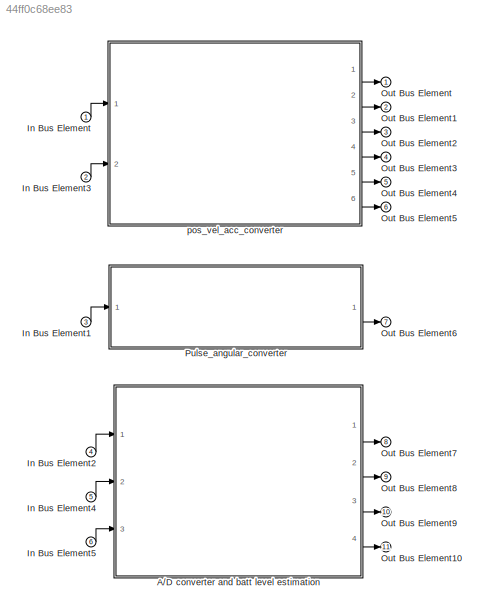
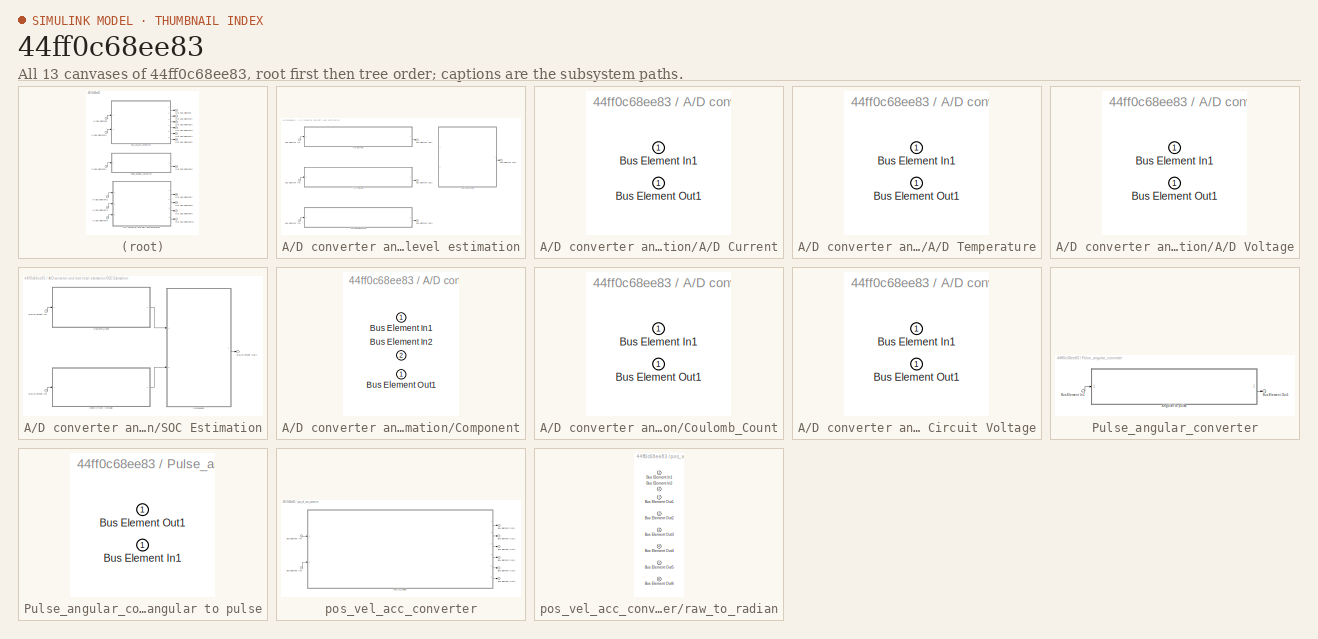
[diagram: thumbnail index - all 13 canvases of the model, root first then tree order]
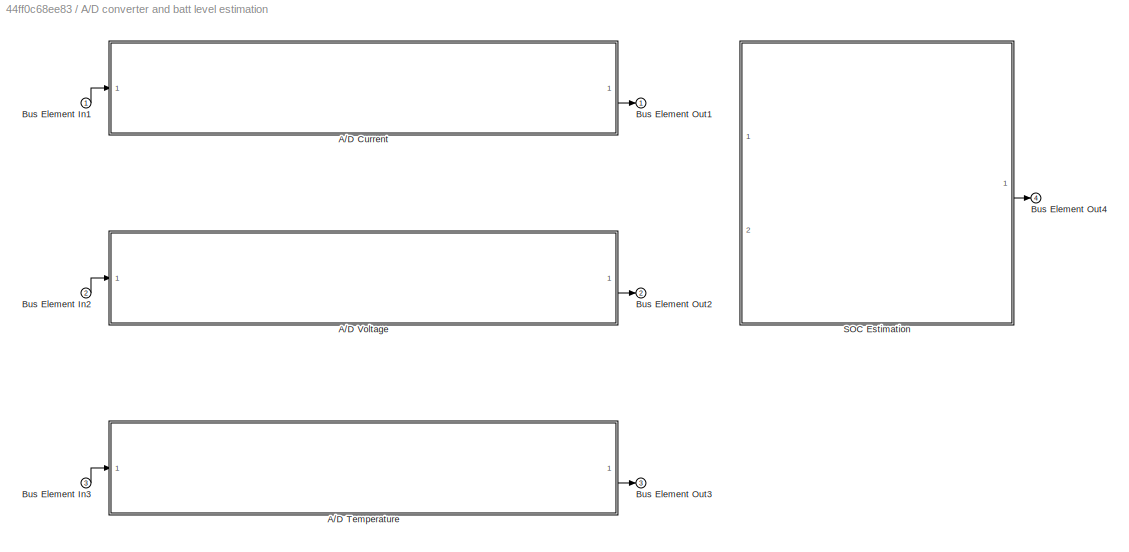
MODEL slx_44ff0c68ee83
KIND model
CONFIG AbsTol = auto
CONFIG EnableMultiTasking = off
CONFIG FixedStep = auto
CONFIG MaxStep = auto
CONFIG MinStep = auto
CONFIG RelTol = 1e-3
CONFIG SampleTimeConstraint = Unconstrained
CONFIG SolverName = VariableStepAuto
CONFIG StartTime = 0.0
CONFIG StopTime = 10.0
BLOCK [SubSystem] A//D converter and batt level estimation
  PortSchema = {"entries":[{"content":{"headerSize":26,"margin":15,"minimumSpacing":25,"sides":[{"content":{"connectorIds":["In1","In2","In3"]},"type":"ConnectorPlacement.EquallySpacedRectSide","uuid":"981ec522-52a0-4dbf-ac20-b0bdc6aa1afd"},{"content":{"connectorIds":["Out1","Out2","Out3","Out4"],"side":"RIGHT"},"type":"ConnectorPlacement.EquallySpacedRectSide","uuid":"9bffbeba-24b3-4025-8564-8c4b0e924e04"},{"co...<+321ch>
  Ports = [3, 4]
  RequestExecContextInheritance = off
BLOCK [SubSystem] A//D converter and batt level estimation/A//D Current
  PortSchema = {"entries":[{"content":{"headerSize":26,"margin":15,"minimumSpacing":25,"sides":[{"content":{"connectorIds":["In1"]},"type":"ConnectorPlacement.EquallySpacedRectSide","uuid":"981ec522-52a0-4dbf-ac20-b0bdc6aa1afd"},{"content":{"connectorIds":["Out1"],"side":"RIGHT"},"type":"ConnectorPlacement.EquallySpacedRectSide","uuid":"9bffbeba-24b3-4025-8564-8c4b0e924e04"},{"content":{"connectorIds":[],"side":...<+288ch>  <repeated x7 — deduplicated; at blocks: A/D Current, A/D Temperature, A/D Voltage, Coulomb_Count, Open Circuit Voltage, Pulse_angular_converter, angular to pulse>
  Ports = [1, 1]
  RequestExecContextInheritance = off
BLOCK [Inport] A//D converter and batt level estimation/A//D Current/Bus Element In1
BLOCK [Outport] A//D converter and batt level estimation/A//D Current/Bus Element Out1
BLOCK [SubSystem] A//D converter and batt level estimation/A//D Temperature
  Ports = [1, 1]
  RequestExecContextInheritance = off
BLOCK [Inport] A//D converter and batt level estimation/A//D Temperature/Bus Element In1
BLOCK [Outport] A//D converter and batt level estimation/A//D Temperature/Bus Element Out1
BLOCK [SubSystem] A//D converter and batt level estimation/A//D Voltage
  Ports = [1, 1]
  RequestExecContextInheritance = off
BLOCK [Inport] A//D converter and batt level estimation/A//D Voltage/Bus Element In1
BLOCK [Outport] A//D converter and batt level estimation/A//D Voltage/Bus Element Out1
BLOCK [Inport] A//D converter and batt level estimation/Bus Element In1
BLOCK [Inport] A//D converter and batt level estimation/Bus Element In2
  Port = 2
BLOCK [Inport] A//D converter and batt level estimation/Bus Element In3
  Port = 3
BLOCK [Outport] A//D converter and batt level estimation/Bus Element Out1
BLOCK [Outport] A//D converter and batt level estimation/Bus Element Out2
  Port = 2
BLOCK [Outport] A//D converter and batt level estimation/Bus Element Out3
  Port = 3
BLOCK [Outport] A//D converter and batt level estimation/Bus Element Out4
  Port = 4
BLOCK [SubSystem] A//D converter and batt level estimation/SOC Estimation
  PortSchema = {"entries":[{"content":{"headerSize":26,"margin":15,"minimumSpacing":25,"sides":[{"content":{"connectorIds":["In1","In2"]},"type":"ConnectorPlacement.EquallySpacedRectSide","uuid":"981ec522-52a0-4dbf-ac20-b0bdc6aa1afd"},{"content":{"connectorIds":["Out1"],"side":"RIGHT"},"type":"ConnectorPlacement.EquallySpacedRectSide","uuid":"9bffbeba-24b3-4025-8564-8c4b0e924e04"},{"content":{"connectorIds":[],"...<+294ch>
  Ports = [2, 1]
  RequestExecContextInheritance = off
BLOCK [Inport] A//D converter and batt level estimation/SOC Estimation/Bus Element In1
BLOCK [Inport] A//D converter and batt level estimation/SOC Estimation/Bus Element In2
  Port = 2
BLOCK [Outport] A//D converter and batt level estimation/SOC Estimation/Bus Element Out1
BLOCK [SubSystem] A//D converter and batt level estimation/SOC Estimation/Component
  PortSchema = {"entries":[{"content":{"headerSize":26,"margin":15,"minimumSpacing":25,"sides":[{"content":{"connectorIds":["In1","In2"]},"type":"ConnectorPlacement.EquallySpacedRectSide","uuid":"981ec522-52a0-4dbf-ac20-b0bdc6aa1afd"},{"content":{"connectorIds":["Out1"],"side":"RIGHT"},"type":"ConnectorPlacement.EquallySpacedRectSide","uuid":"9bffbeba-24b3-4025-8564-8c4b0e924e04"},{"content":{"connectorIds":[],"...<+294ch>
  Ports = [2, 1]
  RequestExecContextInheritance = off
BLOCK [Inport] A//D converter and batt level estimation/SOC Estimation/Component/Bus Element In1
BLOCK [Inport] A//D converter and batt level estimation/SOC Estimation/Component/Bus Element In2
  Port = 2
BLOCK [Outport] A//D converter and batt level estimation/SOC Estimation/Component/Bus Element Out1
BLOCK [SubSystem] A//D converter and batt level estimation/SOC Estimation/Coulomb_Count
  Ports = [1, 1]
  RequestExecContextInheritance = off
BLOCK [Inport] A//D converter and batt level estimation/SOC Estimation/Coulomb_Count/Bus Element In1
BLOCK [Outport] A//D converter and batt level estimation/SOC Estimation/Coulomb_Count/Bus Element Out1
BLOCK [SubSystem] A//D converter and batt level estimation/SOC Estimation/Open Circuit Voltage
  Ports = [1, 1]
  RequestExecContextInheritance = off
BLOCK [Inport] A//D converter and batt level estimation/SOC Estimation/Open Circuit Voltage/Bus Element In1
BLOCK [Outport] A//D converter and batt level estimation/SOC Estimation/Open Circuit Voltage/Bus Element Out1
BLOCK [Inport] In Bus Element
BLOCK [Inport] In Bus Element1
  Port = 3
BLOCK [Inport] In Bus Element2
  Port = 4
BLOCK [Inport] In Bus Element3
  Port = 2
BLOCK [Inport] In Bus Element4
  Port = 5
BLOCK [Inport] In Bus Element5
  Port = 6
BLOCK [Outport] Out Bus Element
BLOCK [Outport] Out Bus Element1
  Port = 2
BLOCK [Outport] Out Bus Element10
  Port = 11
BLOCK [Outport] Out Bus Element2
  Port = 3
BLOCK [Outport] Out Bus Element3
  Port = 4
BLOCK [Outport] Out Bus Element4
  Port = 5
BLOCK [Outport] Out Bus Element5
  Port = 6
BLOCK [Outport] Out Bus Element6
  Port = 7
BLOCK [Outport] Out Bus Element7
  Port = 8
BLOCK [Outport] Out Bus Element8
  Port = 9
BLOCK [Outport] Out Bus Element9
  Port = 10
BLOCK [SubSystem] Pulse_angular_converter
  Ports = [1, 1]
  RequestExecContextInheritance = off
BLOCK [Inport] Pulse_angular_converter/Bus Element In1
BLOCK [Outport] Pulse_angular_converter/Bus Element Out1
BLOCK [SubSystem] Pulse_angular_converter/angular to pulse
  Ports = [1, 1]
  RequestExecContextInheritance = off
BLOCK [Inport] Pulse_angular_converter/angular to pulse/Bus Element In1
BLOCK [Outport] Pulse_angular_converter/angular to pulse/Bus Element Out1
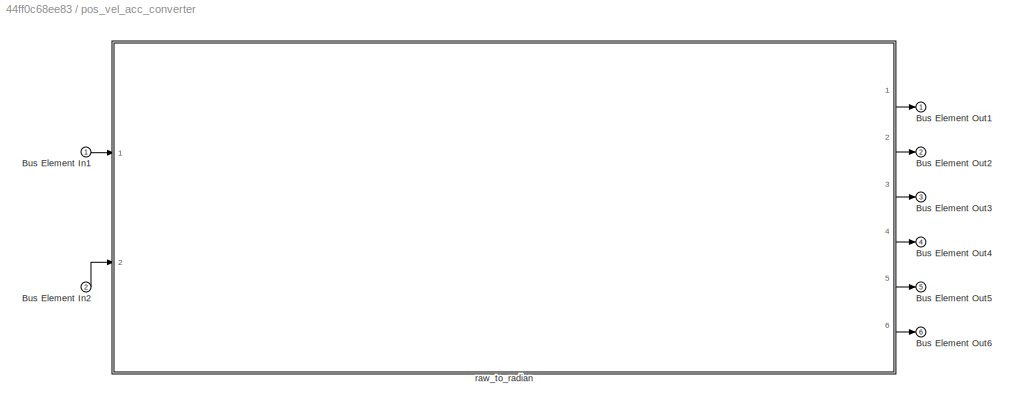
BLOCK [SubSystem] pos_vel_acc_converter
  PortSchema = {"entries":[{"content":{"headerSize":26,"margin":15,"minimumSpacing":25,"sides":[{"content":{"connectorIds":["In1","In2"]},"type":"ConnectorPlacement.EquallySpacedRectSide","uuid":"981ec522-52a0-4dbf-ac20-b0bdc6aa1afd"},{"content":{"connectorIds":["Out1","Out2","Out3","Out4","Out5","Out6"],"side":"RIGHT"},"type":"ConnectorPlacement.EquallySpacedRectSide","uuid":"9bffbeba-24b3-4025-8564-8c4b0e924e0...<+329ch>
  Ports = [2, 6]
  RequestExecContextInheritance = off
BLOCK [Inport] pos_vel_acc_converter/Bus Element In1
BLOCK [Inport] pos_vel_acc_converter/Bus Element In2
  Port = 2
BLOCK [Outport] pos_vel_acc_converter/Bus Element Out1
BLOCK [Outport] pos_vel_acc_converter/Bus Element Out2
  Port = 2
BLOCK [Outport] pos_vel_acc_converter/Bus Element Out3
  Port = 3
BLOCK [Outport] pos_vel_acc_converter/Bus Element Out4
  Port = 4
BLOCK [Outport] pos_vel_acc_converter/Bus Element Out5
  Port = 5
BLOCK [Outport] pos_vel_acc_converter/Bus Element Out6
  Port = 6
BLOCK [SubSystem] pos_vel_acc_converter/raw_to_radian
  PortSchema = {"entries":[{"content":{"headerSize":26,"margin":15,"minimumSpacing":25,"sides":[{"content":{"connectorIds":["In1","In2"]},"type":"ConnectorPlacement.EquallySpacedRectSide","uuid":"981ec522-52a0-4dbf-ac20-b0bdc6aa1afd"},{"content":{"connectorIds":["Out1","Out2","Out3","Out4","Out5","Out6"],"side":"RIGHT"},"type":"ConnectorPlacement.EquallySpacedRectSide","uuid":"9bffbeba-24b3-4025-8564-8c4b0e924e0...<+329ch>
  Ports = [2, 6]
  RequestExecContextInheritance = off
BLOCK [Inport] pos_vel_acc_converter/raw_to_radian/Bus Element In1
BLOCK [Inport] pos_vel_acc_converter/raw_to_radian/Bus Element In2
  Port = 2
BLOCK [Outport] pos_vel_acc_converter/raw_to_radian/Bus Element Out1
BLOCK [Outport] pos_vel_acc_converter/raw_to_radian/Bus Element Out2
  Port = 2
BLOCK [Outport] pos_vel_acc_converter/raw_to_radian/Bus Element Out3
  Port = 3
BLOCK [Outport] pos_vel_acc_converter/raw_to_radian/Bus Element Out4
  Port = 4
BLOCK [Outport] pos_vel_acc_converter/raw_to_radian/Bus Element Out5
  Port = 5
BLOCK [Outport] pos_vel_acc_converter/raw_to_radian/Bus Element Out6
  Port = 6
LINE A//D converter and batt level estimation/A//D Current:1 -> A//D converter and batt level estimation/Bus Element Out1:1
LINE A//D converter and batt level estimation/A//D Temperature:1 -> A//D converter and batt level estimation/Bus Element Out3:1
LINE A//D converter and batt level estimation/A//D Voltage:1 -> A//D converter and batt level estimation/Bus Element Out2:1
LINE A//D converter and batt level estimation/Bus Element In1:1 -> A//D converter and batt level estimation/A//D Current:1
LINE A//D converter and batt level estimation/Bus Element In2:1 -> A//D converter and batt level estimation/A//D Voltage:1
LINE A//D converter and batt level estimation/Bus Element In3:1 -> A//D converter and batt level estimation/A//D Temperature:1
LINE A//D converter and batt level estimation/SOC Estimation/Bus Element In1:1 -> A//D converter and batt level estimation/SOC Estimation/Coulomb_Count:1
LINE A//D converter and batt level estimation/SOC Estimation/Bus Element In2:1 -> A//D converter and batt level estimation/SOC Estimation/Open Circuit Voltage:1
LINE A//D converter and batt level estimation/SOC Estimation/Component:1 -> A//D converter and batt level estimation/SOC Estimation/Bus Element Out1:1
LINE A//D converter and batt level estimation/SOC Estimation/Coulomb_Count:1 -> A//D converter and batt level estimation/SOC Estimation/Component:1
LINE A//D converter and batt level estimation/SOC Estimation/Open Circuit Voltage:1 -> A//D converter and batt level estimation/SOC Estimation/Component:2
LINE A//D converter and batt level estimation/SOC Estimation:1 -> A//D converter and batt level estimation/Bus Element Out4:1
LINE A//D converter and batt level estimation:1 -> Out Bus Element7:1
LINE A//D converter and batt level estimation:2 -> Out Bus Element8:1
LINE A//D converter and batt level estimation:3 -> Out Bus Element9:1
LINE A//D converter and batt level estimation:4 -> Out Bus Element10:1
LINE In Bus Element1:1 -> Pulse_angular_converter:1
LINE In Bus Element2:1 -> A//D converter and batt level estimation:1
LINE In Bus Element3:1 -> pos_vel_acc_converter:2
LINE In Bus Element4:1 -> A//D converter and batt level estimation:2
LINE In Bus Element5:1 -> A//D converter and batt level estimation:3
LINE In Bus Element:1 -> pos_vel_acc_converter:1
LINE Pulse_angular_converter/Bus Element In1:1 -> Pulse_angular_converter/angular to pulse:1
LINE Pulse_angular_converter/angular to pulse:1 -> Pulse_angular_converter/Bus Element Out1:1
LINE Pulse_angular_converter:1 -> Out Bus Element6:1
LINE pos_vel_acc_converter/Bus Element In1:1 -> pos_vel_acc_converter/raw_to_radian:1
LINE pos_vel_acc_converter/Bus Element In2:1 -> pos_vel_acc_converter/raw_to_radian:2
LINE pos_vel_acc_converter/raw_to_radian:1 -> pos_vel_acc_converter/Bus Element Out1:1
LINE pos_vel_acc_converter/raw_to_radian:2 -> pos_vel_acc_converter/Bus Element Out2:1
LINE pos_vel_acc_converter/raw_to_radian:3 -> pos_vel_acc_converter/Bus Element Out3:1
LINE pos_vel_acc_converter/raw_to_radian:4 -> pos_vel_acc_converter/Bus Element Out4:1
LINE pos_vel_acc_converter/raw_to_radian:5 -> pos_vel_acc_converter/Bus Element Out5:1
LINE pos_vel_acc_converter/raw_to_radian:6 -> pos_vel_acc_converter/Bus Element Out6:1
LINE pos_vel_acc_converter:1 -> Out Bus Element:1
LINE pos_vel_acc_converter:2 -> Out Bus Element1:1
LINE pos_vel_acc_converter:3 -> Out Bus Element2:1
LINE pos_vel_acc_converter:4 -> Out Bus Element3:1
LINE pos_vel_acc_converter:5 -> Out Bus Element4:1
LINE pos_vel_acc_converter:6 -> Out Bus Element5:1
